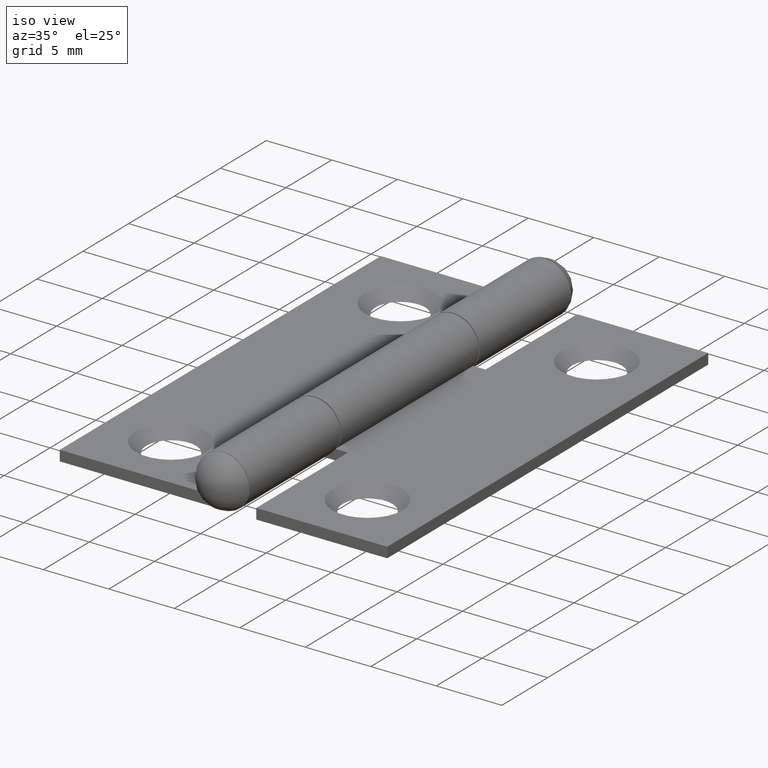
[diagram: clean part render]
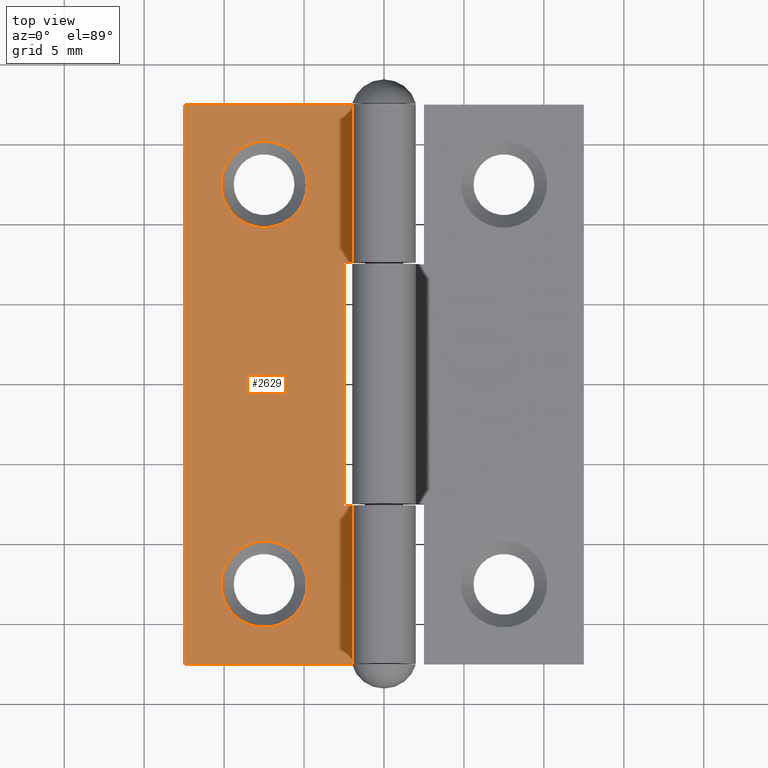
[diagram: tour spotlight — one face highlighted and labeled with its STEP entity id]
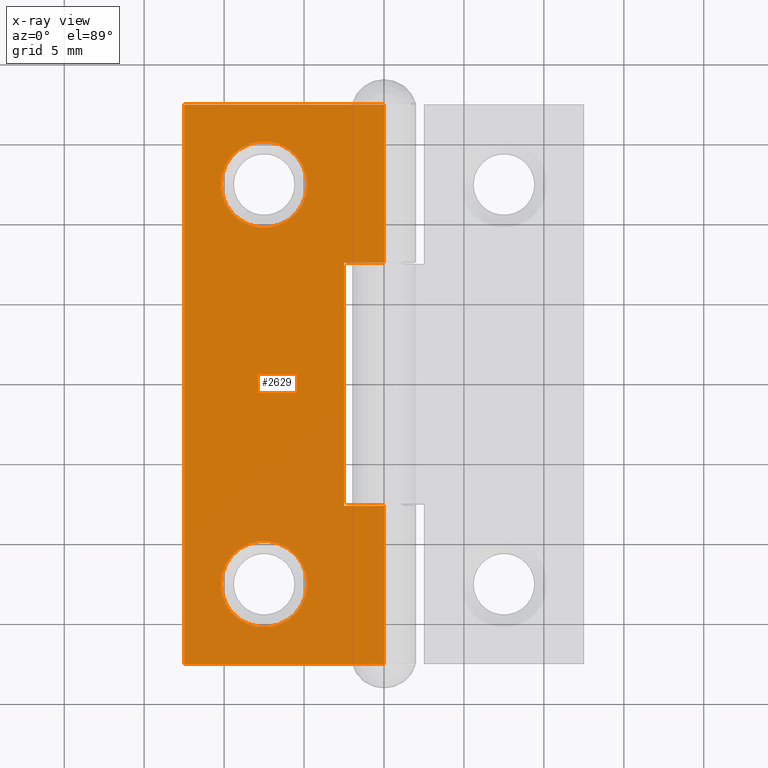
[diagram: x-ray of the same camera — body ghosted, this tour face saturated]
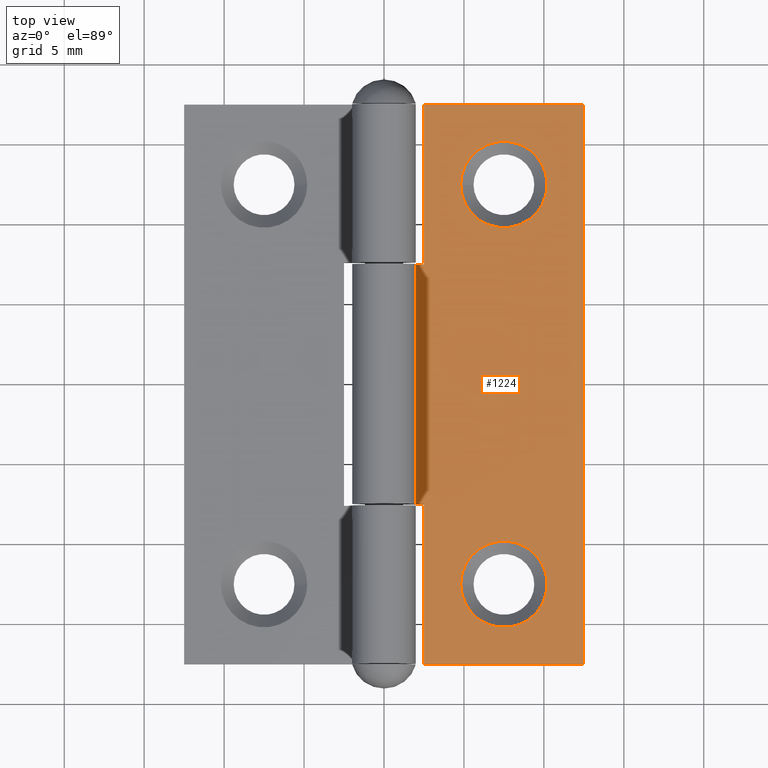
[diagram: tour spotlight — one face highlighted and labeled with its STEP entity id]
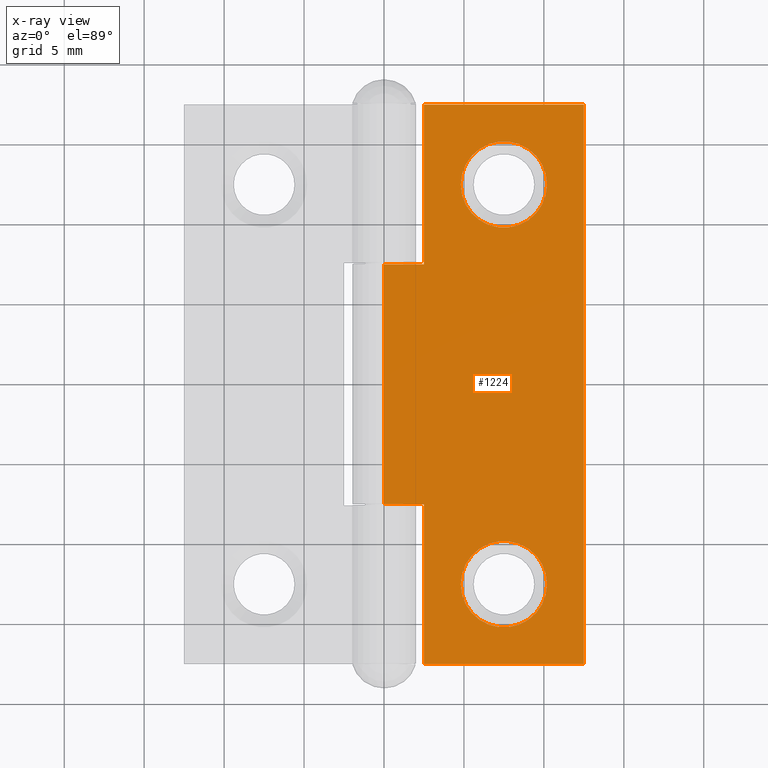
[diagram: x-ray of the same camera — body ghosted, this tour face saturated]
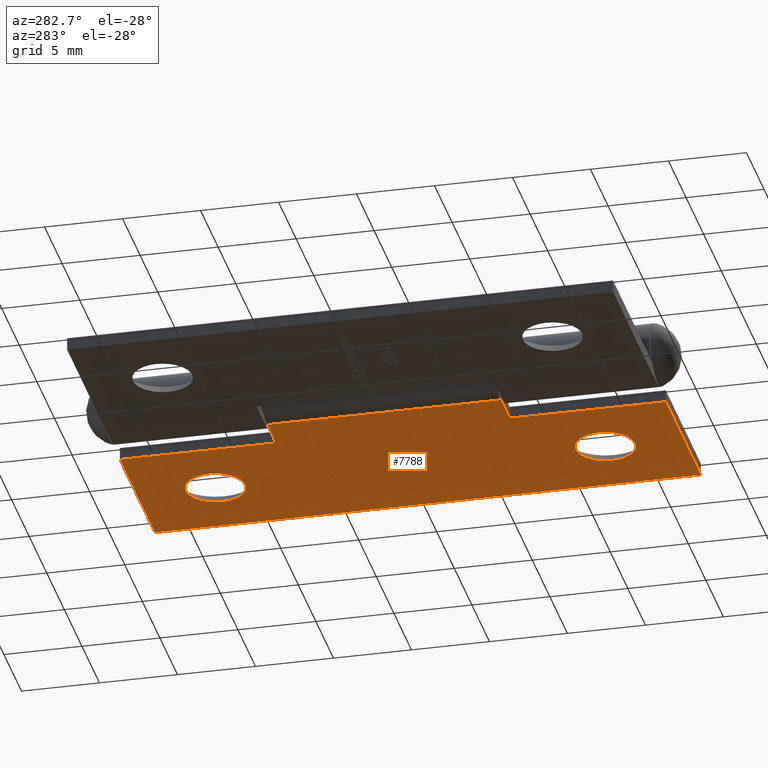
[diagram: tour spotlight — one face highlighted and labeled with its STEP entity id]
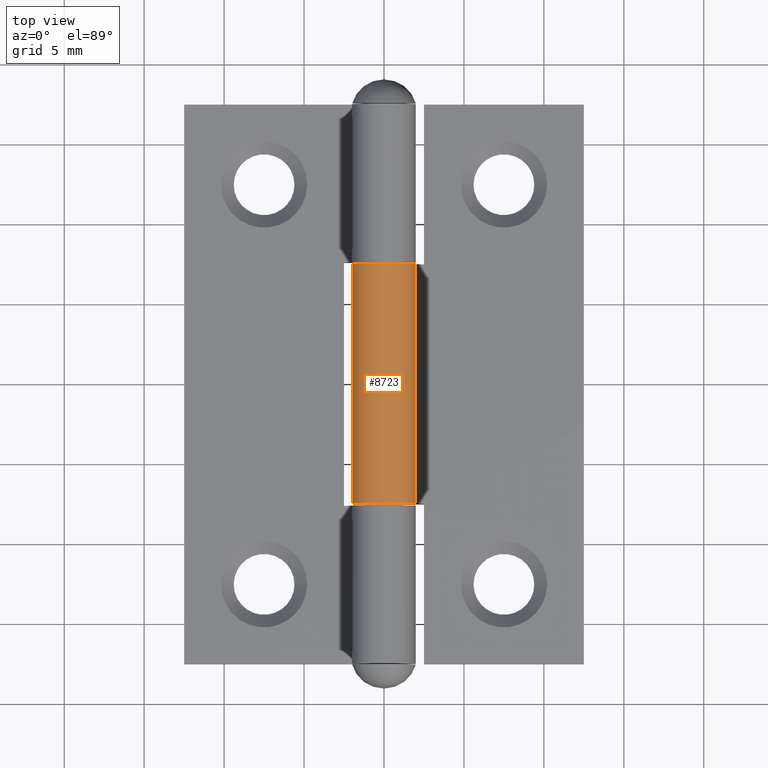
[diagram: tour spotlight — one face highlighted and labeled with its STEP entity id]
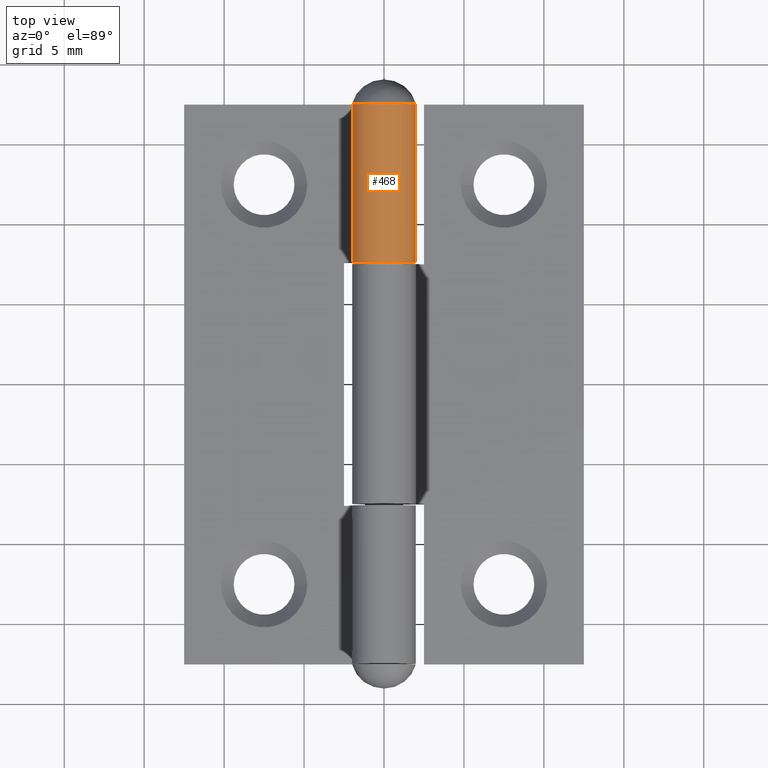
[diagram: tour spotlight — one face highlighted and labeled with its STEP entity id]
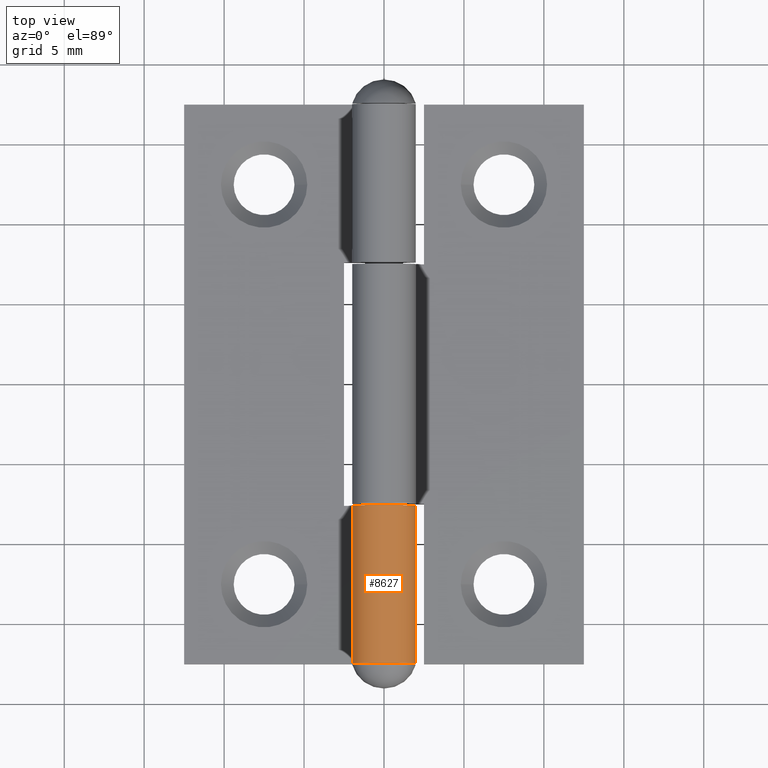
[diagram: tour spotlight — one face highlighted and labeled with its STEP entity id]
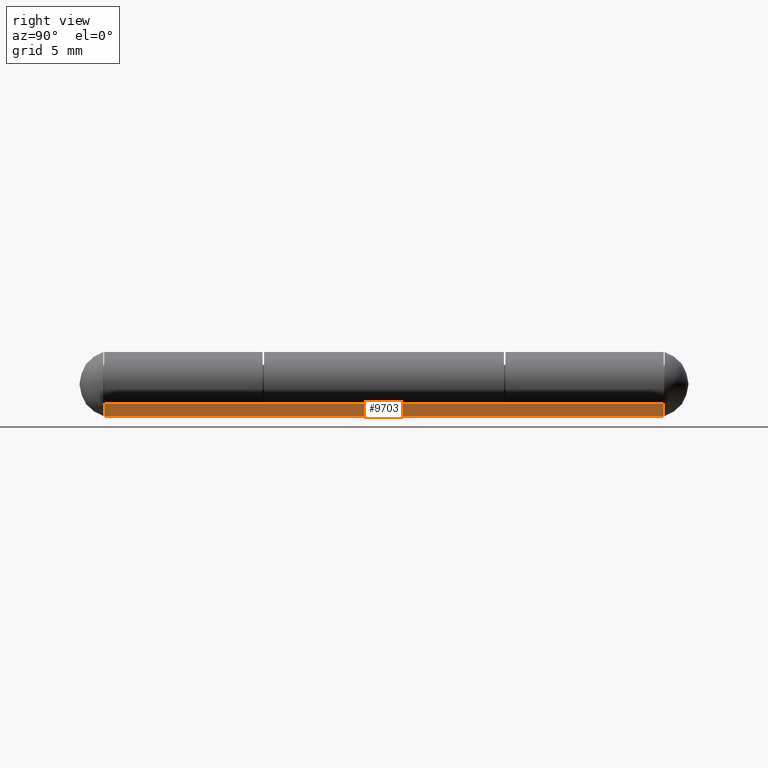
[diagram: tour spotlight — one face highlighted and labeled with its STEP entity id]
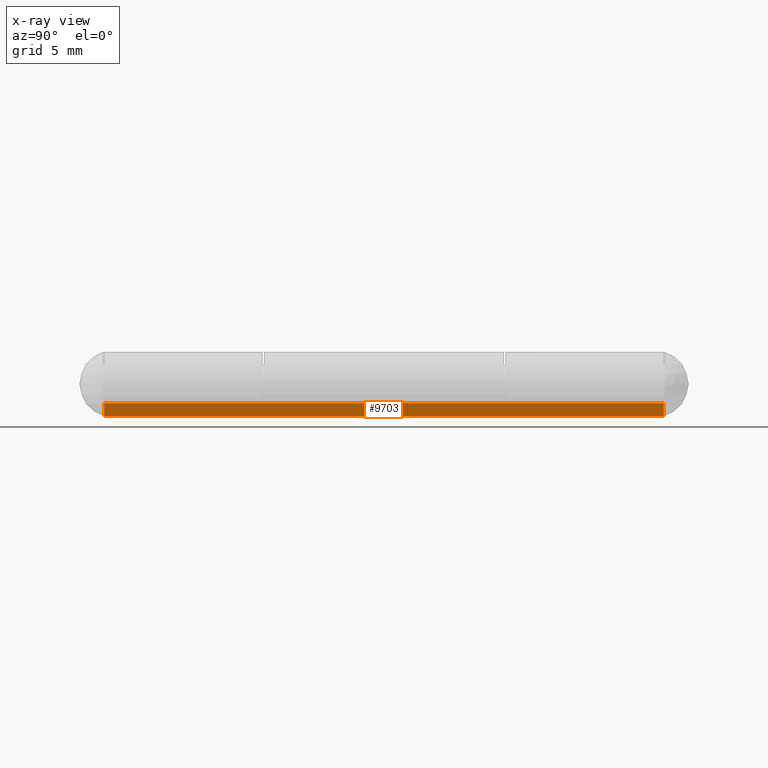
[diagram: x-ray of the same camera — body ghosted, this tour face saturated]
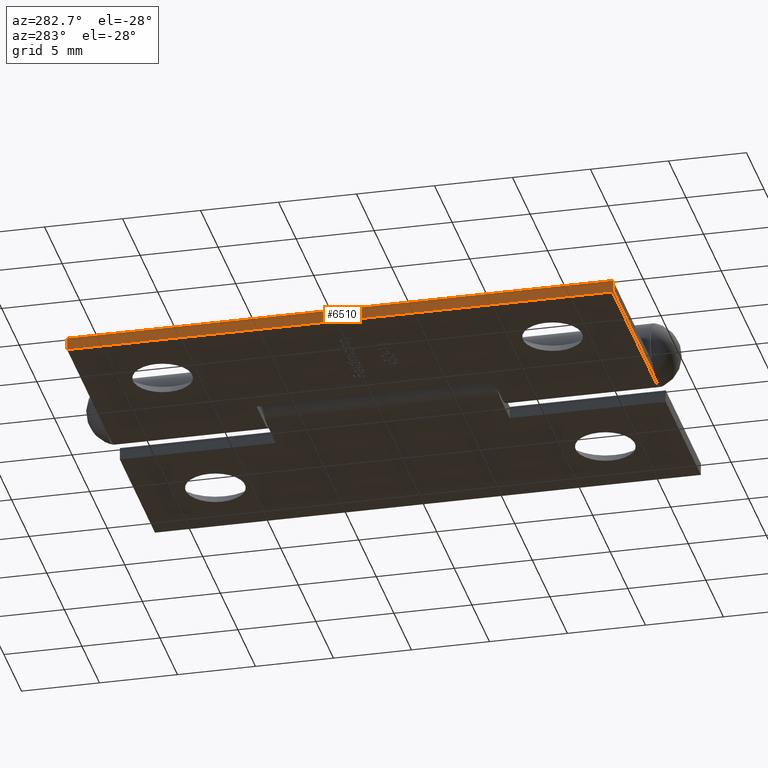
[diagram: tour spotlight — one face highlighted and labeled with its STEP entity id]
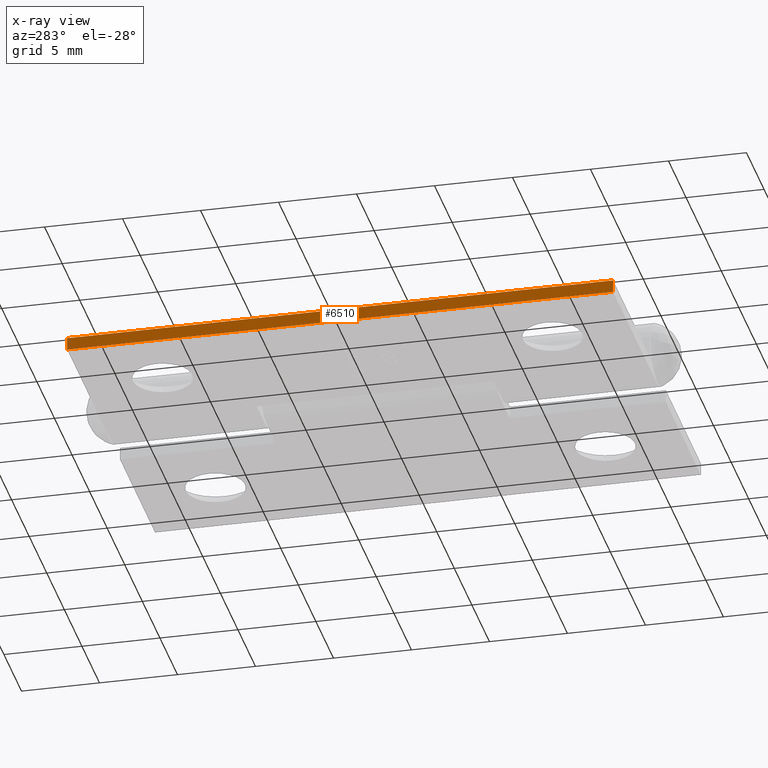
[diagram: x-ray of the same camera — body ghosted, this tour face saturated]
A machine part: a face-by-face anatomy tour. The part has 208 B-rep faces; the first image is the clean iso view, then the 8 largest visible faces are spotlighted one at a time (largest first), each with its STEP entity span.

Face 1 — top view, entity #2629. An x-ray twin of the same camera follows (body ghosted, this face saturated) — the face is partly hidden behind the body. In plain terms, the highlighted planar face has unit normal (-0, 0, -1).
Definition (entity closure, byte-faithful):
#178 = VERTEX_POINT ( 'NONE', #3424 ) ;
#339 = VECTOR ( 'NONE', #2017, 1000.000000000000000 ) ;
#443 = DIRECTION ( 'NONE',  ( -0.000000000000000000, -1.000000000000000000, -0.000000000000000000 ) ) ;
#486 = EDGE_CURVE ( 'NONE', #3921, #9926, #9848, .T. ) ;
#531 = CARTESIAN_POINT ( 'NONE',  ( -2.000000000000000000, -17.50000000000000000, 0.8000000000000001554 ) ) ;
#811 = ORIENTED_EDGE ( 'NONE', *, *, #1791, .T. ) ;
#819 = VECTOR ( 'NONE', #7658, 1000.000000000000000 ) ;
#914 = LINE ( 'NONE', #3261, #7197 ) ;
#1100 = EDGE_CURVE ( 'NONE', #5547, #9301, #914, .T. ) ;
#1205 = DIRECTION ( 'NONE',  ( -1.127570259384924611E-16, 0.000000000000000000, -1.000000000000000000 ) ) ;
#1235 = CARTESIAN_POINT ( 'NONE',  ( -9.500000000000005329, 12.49999999999999822, 0.8000000000000010436 ) ) ;
#1431 = LINE ( 'NONE', #9215, #819 ) ;
#1433 = PLANE ( 'NONE',  #9718 ) ;
#1488 = VECTOR ( 'NONE', #3952, 1000.000000000000000 ) ;
#1584 = CARTESIAN_POINT ( 'NONE',  ( -4.500000000000000000, -7.599999999999999645, 0.8000000000000003775 ) ) ;
#1663 = ORIENTED_EDGE ( 'NONE', *, *, #486, .T. ) ;
#1666 = ORIENTED_EDGE ( 'NONE', *, *, #7957, .T. ) ;
#1791 = EDGE_CURVE ( 'NONE', #4259, #9150, #3826, .T. ) ;
#1914 = ORIENTED_EDGE ( 'NONE', *, *, #3632, .T. ) ;
#1934 = VECTOR ( 'NONE', #443, 1000.000000000000000 ) ;
#2004 = CIRCLE ( 'NONE', #7117, 2.700000000000021938 ) ;
#2017 = DIRECTION ( 'NONE',  ( 0.000000000000000000, 1.000000000000000000, 0.000000000000000000 ) ) ;
#2247 = EDGE_LOOP ( 'NONE', ( #4095, #7237, #1914, #1663, #6989, #2524, #8153, #811 ) ) ;
#2248 = DIRECTION ( 'NONE',  ( 1.000000000000000000, -0.000000000000000000, -1.127570259384924611E-16 ) ) ;
#2259 = DIRECTION ( 'NONE',  ( -1.127570259384924611E-16, 0.000000000000000000, -1.000000000000000000 ) ) ;
#2524 = ORIENTED_EDGE ( 'NONE', *, *, #3361, .F. ) ;
#2629 = ADVANCED_FACE ( 'NONE', ( #9433, #5242, #3190 ), #1433, .F. ) ;
#2764 = DIRECTION ( 'NONE',  ( 1.000000000000000000, -0.000000000000000000, -1.127570259384924611E-16 ) ) ;
#2805 = CARTESIAN_POINT ( 'NONE',  ( -2.000000000000000000, 7.599999999999998757, 0.8000000000000001554 ) ) ;
#2947 = CARTESIAN_POINT ( 'NONE',  ( -12.20000000000002416, -12.50000000000000178, 0.8000000000000013767 ) ) ;
#3036 = AXIS2_PLACEMENT_3D ( 'NONE', #3411, #4300, #4985 ) ;
#3190 = FACE_OUTER_BOUND ( 'NONE', #2247, .T. ) ;
#3226 = DIRECTION ( 'NONE',  ( -1.000000000000000000, 0.000000000000000000, 1.127570259384924611E-16 ) ) ;
#3261 = CARTESIAN_POINT ( 'NONE',  ( -2.000000000000000000, -7.599999999999998757, 0.8000000000000001554 ) ) ;
#3361 = EDGE_CURVE ( 'NONE', #9867, #178, #3387, .T. ) ;
#3387 = LINE ( 'NONE', #7003, #5744 ) ;
#3411 = CARTESIAN_POINT ( 'NONE',  ( -9.500000000000001776, -12.50000000000000178, 0.8000000000000010436 ) ) ;
#3424 = CARTESIAN_POINT ( 'NONE',  ( -2.000000000000000000, 17.50000000000000000, 0.8000000000000001554 ) ) ;
#3580 = CIRCLE ( 'NONE', #3036, 2.700000000000021938 ) ;
#3586 = EDGE_CURVE ( 'NONE', #5547, #9150, #10066, .T. ) ;
#3632 = EDGE_CURVE ( 'NONE', #9301, #3921, #4993, .T. ) ;
#3764 = EDGE_CURVE ( 'NONE', #178, #9926, #1431, .T. ) ;
#3826 = LINE ( 'NONE', #8691, #1488 ) ;
#3921 = VERTEX_POINT ( 'NONE', #7297 ) ;
#3934 = VECTOR ( 'NONE', #8388, 1000.000000000000000 ) ;
#3952 = DIRECTION ( 'NONE',  ( 1.000000000000000000, -0.000000000000000000, -1.127570259384924611E-16 ) ) ;
#4095 = ORIENTED_EDGE ( 'NONE', *, *, #3586, .F. ) ;
#4259 = VERTEX_POINT ( 'NONE', #7398 ) ;
#4300 = DIRECTION ( 'NONE',  ( -1.127570259384924611E-16, 0.000000000000000000, -1.000000000000000000 ) ) ;
#4306 = CARTESIAN_POINT ( 'NONE',  ( -14.50000000000000000, 17.50000000000000000, 0.8000000000000015987 ) ) ;
#4427 = LINE ( 'NONE', #4306, #3934 ) ;
#4985 = DIRECTION ( 'NONE',  ( -1.000000000000000000, 0.000000000000000000, 1.204669080539439483E-16 ) ) ;
#4993 = LINE ( 'NONE', #8289, #339 ) ;
#5054 = CARTESIAN_POINT ( 'NONE',  ( -14.50000000000000000, 17.50000000000000000, 0.8000000000000015987 ) ) ;
#5242 = FACE_BOUND ( 'NONE', #8300, .T. ) ;
#5423 = CARTESIAN_POINT ( 'NONE',  ( -2.000000000000000000, 17.50000000000000000, 0.8000000000000001554 ) ) ;
#5547 = VERTEX_POINT ( 'NONE', #8218 ) ;
#5744 = VECTOR ( 'NONE', #2248, 1000.000000000000000 ) ;
#5948 = CARTESIAN_POINT ( 'NONE',  ( -2.000000000000000000, 7.599999999999998757, 0.8000000000000001554 ) ) ;
#5959 = CARTESIAN_POINT ( 'NONE',  ( -2.000000000000000000, 17.50000000000000000, 0.8000000000000001554 ) ) ;
#6920 = CARTESIAN_POINT ( 'NONE',  ( -12.20000000000002593, 12.49999999999999822, 0.8000000000000013767 ) ) ;
#6989 = ORIENTED_EDGE ( 'NONE', *, *, #3764, .F. ) ;
#7003 = CARTESIAN_POINT ( 'NONE',  ( -2.000000000000000000, 17.50000000000000000, 0.8000000000000001554 ) ) ;
#7117 = AXIS2_PLACEMENT_3D ( 'NONE', #1235, #1205, #9743 ) ;
#7197 = VECTOR ( 'NONE', #3226, 1000.000000000000000 ) ;
#7237 = ORIENTED_EDGE ( 'NONE', *, *, #1100, .T. ) ;
#7297 = CARTESIAN_POINT ( 'NONE',  ( -4.500000000000000000, 7.599999999999999645, 0.8000000000000003775 ) ) ;
#7398 = CARTESIAN_POINT ( 'NONE',  ( -14.50000000000000000, -17.50000000000000000, 0.8000000000000015987 ) ) ;
#7658 = DIRECTION ( 'NONE',  ( -0.000000000000000000, -1.000000000000000000, -0.000000000000000000 ) ) ;
#7957 = EDGE_CURVE ( 'NONE', #9865, #9865, #2004, .T. ) ;
#8153 = ORIENTED_EDGE ( 'NONE', *, *, #8822, .T. ) ;
#8218 = CARTESIAN_POINT ( 'NONE',  ( -2.000000000000000000, -7.599999999999998757, 0.8000000000000001554 ) ) ;
#8266 = VERTEX_POINT ( 'NONE', #2947 ) ;
#8289 = CARTESIAN_POINT ( 'NONE',  ( -4.500000000000000888, 17.50000000000000000, 0.8000000000000004885 ) ) ;
#8300 = EDGE_LOOP ( 'NONE', ( #1666 ) ) ;
#8388 = DIRECTION ( 'NONE',  ( -0.000000000000000000, -1.000000000000000000, -0.000000000000000000 ) ) ;
#8691 = CARTESIAN_POINT ( 'NONE',  ( -2.000000000000000000, -17.50000000000000000, 0.8000000000000001554 ) ) ;
#8822 = EDGE_CURVE ( 'NONE', #9867, #4259, #4427, .T. ) ;
#8825 = EDGE_LOOP ( 'NONE', ( #8960 ) ) ;
#8960 = ORIENTED_EDGE ( 'NONE', *, *, #9811, .T. ) ;
#9150 = VERTEX_POINT ( 'NONE', #531 ) ;
#9215 = CARTESIAN_POINT ( 'NONE',  ( -2.000000000000000000, 17.50000000000000000, 0.8000000000000001554 ) ) ;
#9301 = VERTEX_POINT ( 'NONE', #1584 ) ;
#9433 = FACE_BOUND ( 'NONE', #8825, .T. ) ;
#9718 = AXIS2_PLACEMENT_3D ( 'NONE', #5423, #2259, #10111 ) ;
#9743 = DIRECTION ( 'NONE',  ( -1.000000000000000000, 0.000000000000000000, 1.204669080539439483E-16 ) ) ;
#9811 = EDGE_CURVE ( 'NONE', #8266, #8266, #3580, .T. ) ;
#9848 = LINE ( 'NONE', #2805, #10205 ) ;
#9865 = VERTEX_POINT ( 'NONE', #6920 ) ;
#9867 = VERTEX_POINT ( 'NONE', #5054 ) ;
#9926 = VERTEX_POINT ( 'NONE', #5948 ) ;
#10066 = LINE ( 'NONE', #5959, #1934 ) ;
#10111 = DIRECTION ( 'NONE',  ( -1.000000000000000000, 0.000000000000000000, 1.127570259384924611E-16 ) ) ;
#10205 = VECTOR ( 'NONE', #2764, 1000.000000000000000 ) ;

Face 2 — top view, entity #1224. An x-ray twin of the same camera follows (body ghosted, this face saturated) — the face is partly hidden behind the body. In plain terms, the highlighted planar face has unit normal (0, -0, -1).
Definition (entity closure, byte-faithful):
#119 = VERTEX_POINT ( 'NONE', #9287 ) ;
#354 = CARTESIAN_POINT ( 'NONE',  ( -2.000000000000000000, 17.50000000000000000, 0.8000000000000001554 ) ) ;
#587 = CARTESIAN_POINT ( 'NONE',  ( -2.000000000000000000, -17.50000000000000000, 0.8000000000000001554 ) ) ;
#1083 = ORIENTED_EDGE ( 'NONE', *, *, #5828, .T. ) ;
#1192 = LINE ( 'NONE', #1929, #2545 ) ;
#1224 = ADVANCED_FACE ( 'NONE', ( #8324, #7937, #7580 ), #9923, .F. ) ;
#1536 = DIRECTION ( 'NONE',  ( -1.000000000000000000, 0.000000000000000000, 1.204669080539452055E-16 ) ) ;
#1617 = AXIS2_PLACEMENT_3D ( 'NONE', #10051, #7012, #2194 ) ;
#1751 = DIRECTION ( 'NONE',  ( -0.000000000000000000, -1.000000000000000000, -0.000000000000000000 ) ) ;
#1786 = CARTESIAN_POINT ( 'NONE',  ( -2.000000000000000000, 17.50000000000000000, 0.8000000000000001554 ) ) ;
#1792 = ORIENTED_EDGE ( 'NONE', *, *, #4288, .F. ) ;
#1929 = CARTESIAN_POINT ( 'NONE',  ( -2.000000000000000000, -7.500000000000000000, 0.8000000000000001554 ) ) ;
#2093 = DIRECTION ( 'NONE',  ( 1.000000000000000000, -0.000000000000000000, -1.127570259384924611E-16 ) ) ;
#2116 = EDGE_LOOP ( 'NONE', ( #8781 ) ) ;
#2117 = CARTESIAN_POINT ( 'NONE',  ( -2.000000000000000000, 7.500000000000000000, 0.8000000000000001554 ) ) ;
#2130 = AXIS2_PLACEMENT_3D ( 'NONE', #6077, #8606, #1536 ) ;
#2179 = CARTESIAN_POINT ( 'NONE',  ( -12.19999999999999929, 12.49999999999999822, 0.8000000000000013767 ) ) ;
#2194 = DIRECTION ( 'NONE',  ( -1.000000000000000000, 0.000000000000000000, 1.204669080539452055E-16 ) ) ;
#2213 = VERTEX_POINT ( 'NONE', #2179 ) ;
#2402 = ORIENTED_EDGE ( 'NONE', *, *, #7692, .T. ) ;
#2515 = EDGE_CURVE ( 'NONE', #9634, #4622, #1192, .T. ) ;
#2545 = VECTOR ( 'NONE', #3503, 1000.000000000000000 ) ;
#2690 = DIRECTION ( 'NONE',  ( 0.000000000000000000, 1.000000000000000000, 0.000000000000000000 ) ) ;
#2938 = CARTESIAN_POINT ( 'NONE',  ( -14.50000000000000000, 17.50000000000000000, 0.8000000000000015987 ) ) ;
#3065 = CARTESIAN_POINT ( 'NONE',  ( -4.499999999999995559, 17.50000000000000000, 0.8000000000000004885 ) ) ;
#3200 = EDGE_CURVE ( 'NONE', #9182, #119, #6021, .T. ) ;
#3503 = DIRECTION ( 'NONE',  ( 1.000000000000000000, -0.000000000000000000, -1.127570259384924611E-16 ) ) ;
#3542 = CARTESIAN_POINT ( 'NONE',  ( -4.500000000000002665, -17.50000000000000000, 0.8000000000000004885 ) ) ;
#4061 = CARTESIAN_POINT ( 'NONE',  ( -2.000000000000000000, 17.50000000000000000, 0.8000000000000001554 ) ) ;
#4288 = EDGE_CURVE ( 'NONE', #7782, #4622, #4983, .T. ) ;
#4354 = LINE ( 'NONE', #5185, #4469 ) ;
#4469 = VECTOR ( 'NONE', #2690, 1000.000000000000000 ) ;
#4488 = ORIENTED_EDGE ( 'NONE', *, *, #5199, .T. ) ;
#4530 = EDGE_CURVE ( 'NONE', #119, #7979, #7346, .T. ) ;
#4622 = VERTEX_POINT ( 'NONE', #8894 ) ;
#4983 = LINE ( 'NONE', #1786, #9938 ) ;
#4999 = EDGE_CURVE ( 'NONE', #5163, #5163, #7330, .T. ) ;
#5102 = DIRECTION ( 'NONE',  ( -0.000000000000000000, -1.000000000000000000, -0.000000000000000000 ) ) ;
#5163 = VERTEX_POINT ( 'NONE', #6891 ) ;
#5185 = CARTESIAN_POINT ( 'NONE',  ( -4.500000000000000888, 17.50000000000000000, 0.8000000000000004885 ) ) ;
#5199 = EDGE_CURVE ( 'NONE', #7888, #6572, #4354, .T. ) ;
#5586 = CIRCLE ( 'NONE', #1617, 2.699999999999993960 ) ;
#5666 = DIRECTION ( 'NONE',  ( 1.000000000000000000, -0.000000000000000000, -1.127570259384924611E-16 ) ) ;
#5767 = ORIENTED_EDGE ( 'NONE', *, *, #4530, .T. ) ;
#5828 = EDGE_CURVE ( 'NONE', #2213, #2213, #5586, .T. ) ;
#5997 = ORIENTED_EDGE ( 'NONE', *, *, #6065, .F. ) ;
#6021 = LINE ( 'NONE', #7599, #6255 ) ;
#6065 = EDGE_CURVE ( 'NONE', #9182, #6572, #6104, .T. ) ;
#6077 = CARTESIAN_POINT ( 'NONE',  ( -9.500000000000001776, -12.50000000000000178, 0.8000000000000010436 ) ) ;
#6080 = EDGE_LOOP ( 'NONE', ( #2402, #4488, #5997, #10148, #5767, #6310, #9299, #1792 ) ) ;
#6104 = LINE ( 'NONE', #4061, #7185 ) ;
#6202 = LINE ( 'NONE', #2117, #8770 ) ;
#6255 = VECTOR ( 'NONE', #5102, 1000.000000000000000 ) ;
#6310 = ORIENTED_EDGE ( 'NONE', *, *, #6559, .T. ) ;
#6559 = EDGE_CURVE ( 'NONE', #7979, #9634, #9638, .T. ) ;
#6572 = VERTEX_POINT ( 'NONE', #9263 ) ;
#6662 = DIRECTION ( 'NONE',  ( -1.127570259384924611E-16, 0.000000000000000000, -1.000000000000000000 ) ) ;
#6837 = VECTOR ( 'NONE', #10092, 1000.000000000000000 ) ;
#6891 = CARTESIAN_POINT ( 'NONE',  ( -12.19999999999999574, -12.50000000000000178, 0.8000000000000013767 ) ) ;
#7004 = CARTESIAN_POINT ( 'NONE',  ( -4.500000000000000000, -7.500000000000000000, 0.8000000000000003775 ) ) ;
#7012 = DIRECTION ( 'NONE',  ( -1.127570259384924611E-16, 0.000000000000000000, -1.000000000000000000 ) ) ;
#7185 = VECTOR ( 'NONE', #5666, 1000.000000000000000 ) ;
#7330 = CIRCLE ( 'NONE', #2130, 2.699999999999993960 ) ;
#7346 = LINE ( 'NONE', #587, #8209 ) ;
#7544 = AXIS2_PLACEMENT_3D ( 'NONE', #354, #6662, #9102 ) ;
#7580 = FACE_OUTER_BOUND ( 'NONE', #6080, .T. ) ;
#7599 = CARTESIAN_POINT ( 'NONE',  ( -14.50000000000000000, 17.50000000000000000, 0.8000000000000015987 ) ) ;
#7636 = DIRECTION ( 'NONE',  ( -1.000000000000000000, 0.000000000000000000, 1.127570259384924611E-16 ) ) ;
#7687 = CARTESIAN_POINT ( 'NONE',  ( -4.500000000000000000, 7.500000000000000000, 0.8000000000000003775 ) ) ;
#7692 = EDGE_CURVE ( 'NONE', #7782, #7888, #6202, .T. ) ;
#7782 = VERTEX_POINT ( 'NONE', #9241 ) ;
#7888 = VERTEX_POINT ( 'NONE', #7687 ) ;
#7937 = FACE_BOUND ( 'NONE', #9622, .T. ) ;
#7979 = VERTEX_POINT ( 'NONE', #3542 ) ;
#8209 = VECTOR ( 'NONE', #2093, 1000.000000000000000 ) ;
#8324 = FACE_BOUND ( 'NONE', #2116, .T. ) ;
#8606 = DIRECTION ( 'NONE',  ( -1.127570259384924611E-16, 0.000000000000000000, -1.000000000000000000 ) ) ;
#8770 = VECTOR ( 'NONE', #7636, 1000.000000000000000 ) ;
#8781 = ORIENTED_EDGE ( 'NONE', *, *, #4999, .T. ) ;
#8894 = CARTESIAN_POINT ( 'NONE',  ( -2.000000000000000000, -7.500000000000000000, 0.8000000000000001554 ) ) ;
#9102 = DIRECTION ( 'NONE',  ( -1.000000000000000000, 0.000000000000000000, 1.127570259384924611E-16 ) ) ;
#9182 = VERTEX_POINT ( 'NONE', #2938 ) ;
#9241 = CARTESIAN_POINT ( 'NONE',  ( -2.000000000000000000, 7.500000000000000000, 0.8000000000000001554 ) ) ;
#9263 = CARTESIAN_POINT ( 'NONE',  ( -4.500000000000000000, 17.50000000000000000, 0.8000000000000008216 ) ) ;
#9287 = CARTESIAN_POINT ( 'NONE',  ( -14.50000000000000000, -17.50000000000000000, 0.8000000000000015987 ) ) ;
#9299 = ORIENTED_EDGE ( 'NONE', *, *, #2515, .T. ) ;
#9622 = EDGE_LOOP ( 'NONE', ( #1083 ) ) ;
#9634 = VERTEX_POINT ( 'NONE', #7004 ) ;
#9638 = LINE ( 'NONE', #3065, #6837 ) ;
#9923 = PLANE ( 'NONE',  #7544 ) ;
#9938 = VECTOR ( 'NONE', #1751, 1000.000000000000000 ) ;
#10051 = CARTESIAN_POINT ( 'NONE',  ( -9.500000000000005329, 12.49999999999999822, 0.8000000000000010436 ) ) ;
#10092 = DIRECTION ( 'NONE',  ( 1.734723475976806848E-16, 1.000000000000000000, -1.956022599768286140E-32 ) ) ;
#10148 = ORIENTED_EDGE ( 'NONE', *, *, #3200, .T. ) ;

Face 3 — auxiliary view, entity #7788. In plain terms, the highlighted planar face has unit normal (-0, 0, 1).
Definition (entity closure, byte-faithful):
#53 = ORIENTED_EDGE ( 'NONE', *, *, #8774, .F. ) ;
#408 = FACE_BOUND ( 'NONE', #4222, .T. ) ;
#1058 = LINE ( 'NONE', #2635, #10185 ) ;
#1129 = VECTOR ( 'NONE', #9473, 1000.000000000000000 ) ;
#1134 = CARTESIAN_POINT ( 'NONE',  ( -14.50000000000000000, -17.50000000000000000, 1.517883041479706208E-15 ) ) ;
#1200 = VERTEX_POINT ( 'NONE', #4395 ) ;
#1283 = CARTESIAN_POINT ( 'NONE',  ( -9.500000000000001776, -12.50000000000000178, 2.168404344971008868E-16 ) ) ;
#1860 = CARTESIAN_POINT ( 'NONE',  ( -2.000000000000000000, -17.50000000000000000, 0.000000000000000000 ) ) ;
#1876 = FACE_OUTER_BOUND ( 'NONE', #10037, .T. ) ;
#2104 = LINE ( 'NONE', #8616, #3448 ) ;
#2189 = AXIS2_PLACEMENT_3D ( 'NONE', #7026, #3841, #3038 ) ;
#2210 = DIRECTION ( 'NONE',  ( 1.214306433183764966E-16, -0.000000000000000000, 1.000000000000000000 ) ) ;
#2231 = LINE ( 'NONE', #8700, #1129 ) ;
#2246 = EDGE_CURVE ( 'NONE', #9470, #9470, #8902, .T. ) ;
#2285 = LINE ( 'NONE', #1860, #7811 ) ;
#2635 = CARTESIAN_POINT ( 'NONE',  ( -14.50000000000000000, 17.50000000000000000, 1.517883041479706208E-15 ) ) ;
#2676 = CIRCLE ( 'NONE', #6128, 1.900000000000000577 ) ;
#2768 = VERTEX_POINT ( 'NONE', #3055 ) ;
#3038 = DIRECTION ( 'NONE',  ( 1.000000000000000000, 0.000000000000000000, 0.000000000000000000 ) ) ;
#3055 = CARTESIAN_POINT ( 'NONE',  ( -2.000000000000000000, -7.500000000000000000, 2.602085213965210149E-16 ) ) ;
#3126 = EDGE_CURVE ( 'NONE', #4062, #4361, #1058, .T. ) ;
#3129 = ORIENTED_EDGE ( 'NONE', *, *, #6879, .F. ) ;
#3352 = ORIENTED_EDGE ( 'NONE', *, *, #4081, .T. ) ;
#3448 = VECTOR ( 'NONE', #5405, 1000.000000000000000 ) ;
#3538 = EDGE_CURVE ( 'NONE', #1200, #4062, #4261, .T. ) ;
#3660 = DIRECTION ( 'NONE',  ( 1.000000000000000000, 0.000000000000000000, 0.000000000000000000 ) ) ;
#3681 = EDGE_CURVE ( 'NONE', #5932, #5932, #2676, .T. ) ;
#3841 = DIRECTION ( 'NONE',  ( 0.000000000000000000, 0.000000000000000000, 1.000000000000000000 ) ) ;
#4057 = VECTOR ( 'NONE', #5511, 1000.000000000000000 ) ;
#4062 = VERTEX_POINT ( 'NONE', #8208 ) ;
#4081 = EDGE_CURVE ( 'NONE', #9902, #2768, #8696, .T. ) ;
#4102 = DIRECTION ( 'NONE',  ( 1.734723475976806848E-16, 1.000000000000000000, -2.888894916580853232E-32 ) ) ;
#4222 = EDGE_LOOP ( 'NONE', ( #7298 ) ) ;
#4261 = LINE ( 'NONE', #8220, #7476 ) ;
#4361 = VERTEX_POINT ( 'NONE', #1134 ) ;
#4395 = CARTESIAN_POINT ( 'NONE',  ( -4.500000000000000888, 17.50000000000000000, 3.035766082959413401E-16 ) ) ;
#4402 = VERTEX_POINT ( 'NONE', #9159 ) ;
#4419 = CARTESIAN_POINT ( 'NONE',  ( -4.500000000000002665, -17.50000000000000000, 5.854691731421726902E-16 ) ) ;
#4583 = PLANE ( 'NONE',  #6603 ) ;
#4593 = ORIENTED_EDGE ( 'NONE', *, *, #4848, .T. ) ;
#4810 = CARTESIAN_POINT ( 'NONE',  ( 4.500000000000002665, -7.500000000000000000, -5.854691731421726902E-16 ) ) ;
#4848 = EDGE_CURVE ( 'NONE', #5344, #4361, #2285, .T. ) ;
#4995 = DIRECTION ( 'NONE',  ( -0.000000000000000000, -1.000000000000000000, -0.000000000000000000 ) ) ;
#5232 = ORIENTED_EDGE ( 'NONE', *, *, #2246, .T. ) ;
#5344 = VERTEX_POINT ( 'NONE', #4419 ) ;
#5405 = DIRECTION ( 'NONE',  ( -1.000000000000000000, 0.000000000000000000, 1.301042606982605321E-16 ) ) ;
#5442 = CARTESIAN_POINT ( 'NONE',  ( -2.000000000000000000, 17.50000000000000000, 0.000000000000000000 ) ) ;
#5511 = DIRECTION ( 'NONE',  ( 1.000000000000000000, -0.000000000000000000, -1.301042606982605321E-16 ) ) ;
#5694 = FACE_BOUND ( 'NONE', #5856, .T. ) ;
#5765 = CARTESIAN_POINT ( 'NONE',  ( -2.000000000000000000, 7.500000000000000000, 2.602085213965210149E-16 ) ) ;
#5824 = LINE ( 'NONE', #4810, #4057 ) ;
#5856 = EDGE_LOOP ( 'NONE', ( #5232 ) ) ;
#5879 = VECTOR ( 'NONE', #7444, 1000.000000000000000 ) ;
#5925 = DIRECTION ( 'NONE',  ( -1.000000000000000000, 0.000000000000000000, 1.214306433183764966E-16 ) ) ;
#5932 = VERTEX_POINT ( 'NONE', #8492 ) ;
#6099 = VECTOR ( 'NONE', #4102, 1000.000000000000000 ) ;
#6123 = CARTESIAN_POINT ( 'NONE',  ( -2.000000000000000000, 17.50000000000000000, 0.000000000000000000 ) ) ;
#6128 = AXIS2_PLACEMENT_3D ( 'NONE', #1283, #9908, #3660 ) ;
#6603 = AXIS2_PLACEMENT_3D ( 'NONE', #5442, #2210, #6943 ) ;
#6741 = DIRECTION ( 'NONE',  ( -1.000000000000000000, 0.000000000000000000, 1.214306433183764966E-16 ) ) ;
#6801 = ORIENTED_EDGE ( 'NONE', *, *, #3538, .F. ) ;
#6879 = EDGE_CURVE ( 'NONE', #5344, #4402, #9776, .T. ) ;
#6943 = DIRECTION ( 'NONE',  ( 1.000000000000000000, 0.000000000000000000, -1.214306433183764966E-16 ) ) ;
#7026 = CARTESIAN_POINT ( 'NONE',  ( -9.500000000000005329, 12.49999999999999822, 2.168404344971008868E-16 ) ) ;
#7136 = ORIENTED_EDGE ( 'NONE', *, *, #9270, .F. ) ;
#7216 = CARTESIAN_POINT ( 'NONE',  ( -4.500000000000000888, -7.500000000000000000, 5.854691731421723944E-16 ) ) ;
#7275 = ORIENTED_EDGE ( 'NONE', *, *, #8613, .F. ) ;
#7298 = ORIENTED_EDGE ( 'NONE', *, *, #3681, .T. ) ;
#7444 = DIRECTION ( 'NONE',  ( -0.000000000000000000, -1.000000000000000000, -0.000000000000000000 ) ) ;
#7476 = VECTOR ( 'NONE', #5925, 1000.000000000000000 ) ;
#7788 = ADVANCED_FACE ( 'NONE', ( #408, #5694, #1876 ), #4583, .F. ) ;
#7811 = VECTOR ( 'NONE', #6741, 1000.000000000000000 ) ;
#8125 = ORIENTED_EDGE ( 'NONE', *, *, #3126, .F. ) ;
#8208 = CARTESIAN_POINT ( 'NONE',  ( -14.50000000000000000, 17.50000000000000000, 1.517883041479706208E-15 ) ) ;
#8210 = CARTESIAN_POINT ( 'NONE',  ( -4.500000000000000888, 7.500000000000000000, 5.854691731421723944E-16 ) ) ;
#8220 = CARTESIAN_POINT ( 'NONE',  ( -2.000000000000000000, 17.50000000000000000, 0.000000000000000000 ) ) ;
#8492 = CARTESIAN_POINT ( 'NONE',  ( -7.600000000000000533, -12.50000000000000178, 2.168404344971008868E-16 ) ) ;
#8613 = EDGE_CURVE ( 'NONE', #4402, #2768, #5824, .T. ) ;
#8616 = CARTESIAN_POINT ( 'NONE',  ( 4.500000000000002665, 7.500000000000000000, -5.854691731421726902E-16 ) ) ;
#8696 = LINE ( 'NONE', #6123, #5879 ) ;
#8700 = CARTESIAN_POINT ( 'NONE',  ( -4.500000000000000888, 17.50000000000000000, 5.854691731421723944E-16 ) ) ;
#8774 = EDGE_CURVE ( 'NONE', #9883, #1200, #2231, .T. ) ;
#8902 = CIRCLE ( 'NONE', #2189, 1.900000000000000577 ) ;
#9159 = CARTESIAN_POINT ( 'NONE',  ( -4.500000000000000888, -7.500000000000000000, 5.854691731421723944E-16 ) ) ;
#9270 = EDGE_CURVE ( 'NONE', #9902, #9883, #2104, .T. ) ;
#9470 = VERTEX_POINT ( 'NONE', #9999 ) ;
#9473 = DIRECTION ( 'NONE',  ( -0.000000000000000000, 1.000000000000000000, -0.000000000000000000 ) ) ;
#9776 = LINE ( 'NONE', #7216, #6099 ) ;
#9883 = VERTEX_POINT ( 'NONE', #8210 ) ;
#9902 = VERTEX_POINT ( 'NONE', #5765 ) ;
#9908 = DIRECTION ( 'NONE',  ( 0.000000000000000000, 0.000000000000000000, 1.000000000000000000 ) ) ;
#9999 = CARTESIAN_POINT ( 'NONE',  ( -7.600000000000004086, 12.49999999999999822, 2.168404344971008868E-16 ) ) ;
#10037 = EDGE_LOOP ( 'NONE', ( #6801, #53, #7136, #3352, #7275, #3129, #4593, #8125 ) ) ;
#10185 = VECTOR ( 'NONE', #4995, 1000.000000000000000 ) ;

Face 4 — top view, entity #8723. In plain terms, the highlighted cylindrical surface (edge-blend (fillet) strip) has radius 2 mm, axis along (0, 1, -0).
Definition (entity closure, byte-faithful):
#173 = DIRECTION ( 'NONE',  ( 0.000000000000000000, -1.000000000000000000, 0.000000000000000000 ) ) ;
#708 = DIRECTION ( 'NONE',  ( 0.000000000000000000, 0.000000000000000000, 1.000000000000000000 ) ) ;
#985 = CARTESIAN_POINT ( 'NONE',  ( -2.000000000000000000, 17.50000000000000000, 2.000000000000000444 ) ) ;
#1196 = VERTEX_POINT ( 'NONE', #5011 ) ;
#1353 = DIRECTION ( 'NONE',  ( 0.000000000000000000, 1.000000000000000000, -0.000000000000000000 ) ) ;
#1492 = ORIENTED_EDGE ( 'NONE', *, *, #3329, .T. ) ;
#1827 = ORIENTED_EDGE ( 'NONE', *, *, #4081, .F. ) ;
#2394 = VERTEX_POINT ( 'NONE', #6421 ) ;
#2768 = VERTEX_POINT ( 'NONE', #3055 ) ;
#3055 = CARTESIAN_POINT ( 'NONE',  ( -2.000000000000000000, -7.500000000000000000, 2.602085213965210149E-16 ) ) ;
#3209 = DIRECTION ( 'NONE',  ( 0.000000000000000000, 0.000000000000000000, -1.000000000000000000 ) ) ;
#3218 = CIRCLE ( 'NONE', #4766, 2.000000000000000000 ) ;
#3329 = EDGE_CURVE ( 'NONE', #1196, #2768, #8356, .T. ) ;
#3606 = ORIENTED_EDGE ( 'NONE', *, *, #7901, .T. ) ;
#3720 = VECTOR ( 'NONE', #4532, 1000.000000000000000 ) ;
#3817 = CARTESIAN_POINT ( 'NONE',  ( -2.000000000000000000, -7.500000000000000000, 2.000000000000000444 ) ) ;
#4069 = LINE ( 'NONE', #5968, #3720 ) ;
#4081 = EDGE_CURVE ( 'NONE', #9902, #2768, #8696, .T. ) ;
#4532 = DIRECTION ( 'NONE',  ( -0.000000000000000000, -1.000000000000000000, -0.000000000000000000 ) ) ;
#4766 = AXIS2_PLACEMENT_3D ( 'NONE', #8122, #173, #5684 ) ;
#5011 = CARTESIAN_POINT ( 'NONE',  ( -3.670329308849006544, -7.500000000000000000, 0.9000000000000001332 ) ) ;
#5228 = EDGE_LOOP ( 'NONE', ( #1827, #3606, #7404, #1492 ) ) ;
#5390 = AXIS2_PLACEMENT_3D ( 'NONE', #985, #7926, #3209 ) ;
#5684 = DIRECTION ( 'NONE',  ( 0.000000000000000000, 0.000000000000000000, -1.000000000000000000 ) ) ;
#5765 = CARTESIAN_POINT ( 'NONE',  ( -2.000000000000000000, 7.500000000000000000, 2.602085213965210149E-16 ) ) ;
#5879 = VECTOR ( 'NONE', #7444, 1000.000000000000000 ) ;
#5968 = CARTESIAN_POINT ( 'NONE',  ( -3.670329308849006544, 17.50000000000000000, 0.9000000000000002442 ) ) ;
#6123 = CARTESIAN_POINT ( 'NONE',  ( -2.000000000000000000, 17.50000000000000000, 0.000000000000000000 ) ) ;
#6421 = CARTESIAN_POINT ( 'NONE',  ( -3.670329308849006544, 7.500000000000000000, 0.9000000000000001332 ) ) ;
#6567 = CYLINDRICAL_SURFACE ( 'NONE', #5390, 2.000000000000000000 ) ;
#7404 = ORIENTED_EDGE ( 'NONE', *, *, #7635, .T. ) ;
#7444 = DIRECTION ( 'NONE',  ( -0.000000000000000000, -1.000000000000000000, -0.000000000000000000 ) ) ;
#7635 = EDGE_CURVE ( 'NONE', #2394, #1196, #4069, .T. ) ;
#7901 = EDGE_CURVE ( 'NONE', #9902, #2394, #3218, .T. ) ;
#7926 = DIRECTION ( 'NONE',  ( -0.000000000000000000, -1.000000000000000000, -0.000000000000000000 ) ) ;
#8122 = CARTESIAN_POINT ( 'NONE',  ( -2.000000000000000000, 7.500000000000000000, 2.000000000000000444 ) ) ;
#8356 = CIRCLE ( 'NONE', #8413, 1.999999999999999556 ) ;
#8413 = AXIS2_PLACEMENT_3D ( 'NONE', #3817, #1353, #708 ) ;
#8696 = LINE ( 'NONE', #6123, #5879 ) ;
#8723 = ADVANCED_FACE ( 'NONE', ( #9755 ), #6567, .T. ) ;
#9755 = FACE_OUTER_BOUND ( 'NONE', #5228, .T. ) ;
#9902 = VERTEX_POINT ( 'NONE', #5765 ) ;

Face 5 — top view, entity #468. In plain terms, the highlighted cylindrical surface (edge-blend (fillet) strip) has radius 2 mm, axis along (-0, -1, -0).
Definition (entity closure, byte-faithful):
#458 = VERTEX_POINT ( 'NONE', #2838 ) ;
#468 = ADVANCED_FACE ( 'NONE', ( #9970 ), #1962, .T. ) ;
#702 = DIRECTION ( 'NONE',  ( -0.000000000000000000, -1.000000000000000000, -0.000000000000000000 ) ) ;
#764 = EDGE_CURVE ( 'NONE', #7608, #1430, #1572, .T. ) ;
#1163 = CARTESIAN_POINT ( 'NONE',  ( -3.670329308849006544, 17.50000000000000000, 0.9000000000000002442 ) ) ;
#1340 = DIRECTION ( 'NONE',  ( -0.000000000000000000, -1.000000000000000000, -0.000000000000000000 ) ) ;
#1430 = VERTEX_POINT ( 'NONE', #4422 ) ;
#1509 = CARTESIAN_POINT ( 'NONE',  ( -2.000000000000000000, 17.50000000000000000, 0.000000000000000000 ) ) ;
#1572 = LINE ( 'NONE', #3350, #8486 ) ;
#1746 = DIRECTION ( 'NONE',  ( -0.000000000000000000, -1.000000000000000000, -0.000000000000000000 ) ) ;
#1819 = AXIS2_PLACEMENT_3D ( 'NONE', #3798, #7736, #3057 ) ;
#1962 = CYLINDRICAL_SURFACE ( 'NONE', #8922, 2.000000000000000000 ) ;
#2838 = CARTESIAN_POINT ( 'NONE',  ( -2.000000000000000000, 17.50000000000000000, 0.000000000000000000 ) ) ;
#3057 = DIRECTION ( 'NONE',  ( 0.000000000000000000, 0.000000000000000000, 1.000000000000000000 ) ) ;
#3350 = CARTESIAN_POINT ( 'NONE',  ( -3.670329308849006544, 17.50000000000000000, 0.9000000000000002442 ) ) ;
#3554 = AXIS2_PLACEMENT_3D ( 'NONE', #4265, #4183, #9789 ) ;
#3733 = ORIENTED_EDGE ( 'NONE', *, *, #764, .T. ) ;
#3798 = CARTESIAN_POINT ( 'NONE',  ( -2.000000000000000000, 7.599999999999998757, 2.000000000000000444 ) ) ;
#4183 = DIRECTION ( 'NONE',  ( 0.000000000000000000, 1.000000000000000000, -0.000000000000000000 ) ) ;
#4265 = CARTESIAN_POINT ( 'NONE',  ( -2.000000000000000000, 17.50000000000000000, 2.000000000000000444 ) ) ;
#4422 = CARTESIAN_POINT ( 'NONE',  ( -3.670329308849006544, 7.599999999999998757, 0.9000000000000002442 ) ) ;
#5712 = ORIENTED_EDGE ( 'NONE', *, *, #8186, .F. ) ;
#5811 = EDGE_CURVE ( 'NONE', #1430, #7963, #7690, .T. ) ;
#6738 = CARTESIAN_POINT ( 'NONE',  ( -2.000000000000000000, 7.599999999999999645, 2.602085213965211135E-16 ) ) ;
#7148 = ORIENTED_EDGE ( 'NONE', *, *, #7786, .F. ) ;
#7173 = CIRCLE ( 'NONE', #3554, 2.000000000000000000 ) ;
#7306 = EDGE_LOOP ( 'NONE', ( #10153, #7148, #5712, #3733 ) ) ;
#7421 = LINE ( 'NONE', #1509, #7548 ) ;
#7548 = VECTOR ( 'NONE', #702, 1000.000000000000000 ) ;
#7586 = CARTESIAN_POINT ( 'NONE',  ( -2.000000000000000000, 17.50000000000000000, 2.000000000000000444 ) ) ;
#7608 = VERTEX_POINT ( 'NONE', #1163 ) ;
#7690 = CIRCLE ( 'NONE', #1819, 1.999999999999999556 ) ;
#7736 = DIRECTION ( 'NONE',  ( 0.000000000000000000, 1.000000000000000000, -0.000000000000000000 ) ) ;
#7786 = EDGE_CURVE ( 'NONE', #458, #7963, #7421, .T. ) ;
#7963 = VERTEX_POINT ( 'NONE', #6738 ) ;
#8186 = EDGE_CURVE ( 'NONE', #7608, #458, #7173, .T. ) ;
#8486 = VECTOR ( 'NONE', #1746, 1000.000000000000000 ) ;
#8922 = AXIS2_PLACEMENT_3D ( 'NONE', #7586, #1340, #9959 ) ;
#9789 = DIRECTION ( 'NONE',  ( 0.000000000000000000, 0.000000000000000000, -1.000000000000000000 ) ) ;
#9959 = DIRECTION ( 'NONE',  ( 0.000000000000000000, 0.000000000000000000, -1.000000000000000000 ) ) ;
#9970 = FACE_OUTER_BOUND ( 'NONE', #7306, .T. ) ;
#10153 = ORIENTED_EDGE ( 'NONE', *, *, #5811, .T. ) ;

Face 6 — top view, entity #8627. In plain terms, the highlighted cylindrical surface (edge-blend (fillet) strip) has radius 2 mm, axis along (-0, -1, -0).
Definition (entity closure, byte-faithful):
#350 = EDGE_CURVE ( 'NONE', #6808, #6335, #7986, .T. ) ;
#388 = ORIENTED_EDGE ( 'NONE', *, *, #2989, .F. ) ;
#473 = DIRECTION ( 'NONE',  ( 0.000000000000000000, 0.000000000000000000, -1.000000000000000000 ) ) ;
#617 = CARTESIAN_POINT ( 'NONE',  ( -3.670329308849006544, -17.50000000000000000, 0.9000000000000002442 ) ) ;
#782 = CARTESIAN_POINT ( 'NONE',  ( -2.000000000000000000, 17.50000000000000000, 2.000000000000000444 ) ) ;
#1370 = FACE_OUTER_BOUND ( 'NONE', #10060, .T. ) ;
#1432 = CARTESIAN_POINT ( 'NONE',  ( -2.000000000000000000, -7.599999999999998757, 2.000000000000000444 ) ) ;
#1848 = CIRCLE ( 'NONE', #7652, 2.000000000000000000 ) ;
#2292 = VECTOR ( 'NONE', #3418, 1000.000000000000000 ) ;
#2555 = LINE ( 'NONE', #4059, #4710 ) ;
#2575 = VERTEX_POINT ( 'NONE', #617 ) ;
#2989 = EDGE_CURVE ( 'NONE', #6808, #8183, #2555, .T. ) ;
#3160 = DIRECTION ( 'NONE',  ( -0.000000000000000000, -1.000000000000000000, -0.000000000000000000 ) ) ;
#3168 = EDGE_CURVE ( 'NONE', #6335, #2575, #7595, .T. ) ;
#3407 = CARTESIAN_POINT ( 'NONE',  ( -2.000000000000000000, -17.50000000000000000, 0.000000000000000000 ) ) ;
#3418 = DIRECTION ( 'NONE',  ( -0.000000000000000000, -1.000000000000000000, -0.000000000000000000 ) ) ;
#3652 = ORIENTED_EDGE ( 'NONE', *, *, #9945, .T. ) ;
#4055 = AXIS2_PLACEMENT_3D ( 'NONE', #782, #3160, #6345 ) ;
#4059 = CARTESIAN_POINT ( 'NONE',  ( -2.000000000000000000, 17.50000000000000000, 0.000000000000000000 ) ) ;
#4664 = CYLINDRICAL_SURFACE ( 'NONE', #4055, 2.000000000000000000 ) ;
#4710 = VECTOR ( 'NONE', #5665, 1000.000000000000000 ) ;
#5031 = CARTESIAN_POINT ( 'NONE',  ( -3.670329308849006544, 17.50000000000000000, 0.9000000000000002442 ) ) ;
#5300 = ORIENTED_EDGE ( 'NONE', *, *, #350, .T. ) ;
#5619 = AXIS2_PLACEMENT_3D ( 'NONE', #1432, #7758, #8530 ) ;
#5665 = DIRECTION ( 'NONE',  ( -0.000000000000000000, -1.000000000000000000, -0.000000000000000000 ) ) ;
#6335 = VERTEX_POINT ( 'NONE', #7345 ) ;
#6345 = DIRECTION ( 'NONE',  ( 0.000000000000000000, 0.000000000000000000, -1.000000000000000000 ) ) ;
#6808 = VERTEX_POINT ( 'NONE', #9585 ) ;
#7345 = CARTESIAN_POINT ( 'NONE',  ( -3.670329308849006544, -7.599999999999998757, 0.9000000000000001332 ) ) ;
#7595 = LINE ( 'NONE', #5031, #2292 ) ;
#7622 = DIRECTION ( 'NONE',  ( 0.000000000000000000, 1.000000000000000000, -0.000000000000000000 ) ) ;
#7652 = AXIS2_PLACEMENT_3D ( 'NONE', #8382, #7622, #473 ) ;
#7758 = DIRECTION ( 'NONE',  ( 0.000000000000000000, -1.000000000000000000, 0.000000000000000000 ) ) ;
#7986 = CIRCLE ( 'NONE', #5619, 2.000000000000000000 ) ;
#8183 = VERTEX_POINT ( 'NONE', #3407 ) ;
#8382 = CARTESIAN_POINT ( 'NONE',  ( -2.000000000000000000, -17.50000000000000000, 2.000000000000000444 ) ) ;
#8530 = DIRECTION ( 'NONE',  ( 0.000000000000000000, 0.000000000000000000, -1.000000000000000000 ) ) ;
#8627 = ADVANCED_FACE ( 'NONE', ( #1370 ), #4664, .T. ) ;
#8685 = ORIENTED_EDGE ( 'NONE', *, *, #3168, .T. ) ;
#9585 = CARTESIAN_POINT ( 'NONE',  ( -2.000000000000000000, -7.599999999999999645, 2.602085213965211135E-16 ) ) ;
#9945 = EDGE_CURVE ( 'NONE', #2575, #8183, #1848, .T. ) ;
#10060 = EDGE_LOOP ( 'NONE', ( #388, #5300, #8685, #3652 ) ) ;

Face 7 — right view, entity #9703. An x-ray twin of the same camera follows (body ghosted, this face saturated) — the face is partly hidden behind the body. In plain terms, the highlighted planar face has unit normal (-1, 0, 0).
Definition (entity closure, byte-faithful):
#119 = VERTEX_POINT ( 'NONE', #9287 ) ;
#472 = ORIENTED_EDGE ( 'NONE', *, *, #3200, .F. ) ;
#957 = EDGE_CURVE ( 'NONE', #4062, #9182, #3752, .T. ) ;
#1058 = LINE ( 'NONE', #2635, #10185 ) ;
#1134 = CARTESIAN_POINT ( 'NONE',  ( -14.50000000000000000, -17.50000000000000000, 1.517883041479706208E-15 ) ) ;
#1259 = DIRECTION ( 'NONE',  ( -0.000000000000000000, -0.000000000000000000, 1.000000000000000000 ) ) ;
#1604 = LINE ( 'NONE', #3588, #5814 ) ;
#2141 = ORIENTED_EDGE ( 'NONE', *, *, #3126, .T. ) ;
#2505 = AXIS2_PLACEMENT_3D ( 'NONE', #9500, #9540, #5623 ) ;
#2635 = CARTESIAN_POINT ( 'NONE',  ( -14.50000000000000000, 17.50000000000000000, 1.517883041479706208E-15 ) ) ;
#2725 = ORIENTED_EDGE ( 'NONE', *, *, #957, .F. ) ;
#2938 = CARTESIAN_POINT ( 'NONE',  ( -14.50000000000000000, 17.50000000000000000, 0.8000000000000015987 ) ) ;
#3126 = EDGE_CURVE ( 'NONE', #4062, #4361, #1058, .T. ) ;
#3200 = EDGE_CURVE ( 'NONE', #9182, #119, #6021, .T. ) ;
#3588 = CARTESIAN_POINT ( 'NONE',  ( -14.50000000000000000, -17.50000000000000000, 0.8000000000000015987 ) ) ;
#3716 = ORIENTED_EDGE ( 'NONE', *, *, #9025, .T. ) ;
#3752 = LINE ( 'NONE', #5179, #5730 ) ;
#4062 = VERTEX_POINT ( 'NONE', #8208 ) ;
#4361 = VERTEX_POINT ( 'NONE', #1134 ) ;
#4642 = FACE_OUTER_BOUND ( 'NONE', #8887, .T. ) ;
#4791 = PLANE ( 'NONE',  #2505 ) ;
#4995 = DIRECTION ( 'NONE',  ( -0.000000000000000000, -1.000000000000000000, -0.000000000000000000 ) ) ;
#5102 = DIRECTION ( 'NONE',  ( -0.000000000000000000, -1.000000000000000000, -0.000000000000000000 ) ) ;
#5179 = CARTESIAN_POINT ( 'NONE',  ( -14.50000000000000000, 17.50000000000000000, 0.8000000000000015987 ) ) ;
#5623 = DIRECTION ( 'NONE',  ( 0.000000000000000000, 0.000000000000000000, -1.000000000000000000 ) ) ;
#5730 = VECTOR ( 'NONE', #1259, 1000.000000000000000 ) ;
#5814 = VECTOR ( 'NONE', #9042, 1000.000000000000000 ) ;
#6021 = LINE ( 'NONE', #7599, #6255 ) ;
#6255 = VECTOR ( 'NONE', #5102, 1000.000000000000000 ) ;
#7599 = CARTESIAN_POINT ( 'NONE',  ( -14.50000000000000000, 17.50000000000000000, 0.8000000000000015987 ) ) ;
#8208 = CARTESIAN_POINT ( 'NONE',  ( -14.50000000000000000, 17.50000000000000000, 1.517883041479706208E-15 ) ) ;
#8887 = EDGE_LOOP ( 'NONE', ( #3716, #472, #2725, #2141 ) ) ;
#9025 = EDGE_CURVE ( 'NONE', #4361, #119, #1604, .T. ) ;
#9042 = DIRECTION ( 'NONE',  ( -0.000000000000000000, -0.000000000000000000, 1.000000000000000000 ) ) ;
#9182 = VERTEX_POINT ( 'NONE', #2938 ) ;
#9287 = CARTESIAN_POINT ( 'NONE',  ( -14.50000000000000000, -17.50000000000000000, 0.8000000000000015987 ) ) ;
#9500 = CARTESIAN_POINT ( 'NONE',  ( -14.50000000000000000, 17.50000000000000000, 0.8000000000000015987 ) ) ;
#9540 = DIRECTION ( 'NONE',  ( 1.000000000000000000, -0.000000000000000000, 0.000000000000000000 ) ) ;
#9703 = ADVANCED_FACE ( 'NONE', ( #4642 ), #4791, .F. ) ;
#10185 = VECTOR ( 'NONE', #4995, 1000.000000000000000 ) ;

Face 8 — auxiliary view, entity #6510. An x-ray twin of the same camera follows (body ghosted, this face saturated) — the face is partly hidden behind the body. In plain terms, the highlighted planar face has unit normal (1, 0, 0).
Definition (entity closure, byte-faithful):
#131 = CARTESIAN_POINT ( 'NONE',  ( -14.50000000000000000, 17.50000000000000000, 1.517883041479706208E-15 ) ) ;
#294 = VECTOR ( 'NONE', #6624, 1000.000000000000000 ) ;
#926 = CARTESIAN_POINT ( 'NONE',  ( -14.50000000000000000, 17.50000000000000000, 0.8000000000000015987 ) ) ;
#1445 = DIRECTION ( 'NONE',  ( 0.000000000000000000, 0.000000000000000000, -1.000000000000000000 ) ) ;
#1570 = DIRECTION ( 'NONE',  ( -0.000000000000000000, -0.000000000000000000, 1.000000000000000000 ) ) ;
#1729 = ORIENTED_EDGE ( 'NONE', *, *, #4211, .F. ) ;
#2166 = CARTESIAN_POINT ( 'NONE',  ( -14.50000000000000000, 17.50000000000000000, 0.8000000000000015987 ) ) ;
#2368 = ORIENTED_EDGE ( 'NONE', *, *, #7434, .T. ) ;
#2472 = VERTEX_POINT ( 'NONE', #4922 ) ;
#3119 = CARTESIAN_POINT ( 'NONE',  ( -14.50000000000000000, -17.50000000000000000, 0.8000000000000015987 ) ) ;
#3614 = FACE_OUTER_BOUND ( 'NONE', #7807, .T. ) ;
#3934 = VECTOR ( 'NONE', #8388, 1000.000000000000000 ) ;
#3982 = ORIENTED_EDGE ( 'NONE', *, *, #6899, .T. ) ;
#4211 = EDGE_CURVE ( 'NONE', #10102, #9867, #8826, .T. ) ;
#4259 = VERTEX_POINT ( 'NONE', #7398 ) ;
#4306 = CARTESIAN_POINT ( 'NONE',  ( -14.50000000000000000, 17.50000000000000000, 0.8000000000000015987 ) ) ;
#4427 = LINE ( 'NONE', #4306, #3934 ) ;
#4922 = CARTESIAN_POINT ( 'NONE',  ( -14.50000000000000000, -17.50000000000000000, 1.517883041479706208E-15 ) ) ;
#5054 = CARTESIAN_POINT ( 'NONE',  ( -14.50000000000000000, 17.50000000000000000, 0.8000000000000015987 ) ) ;
#5703 = VECTOR ( 'NONE', #1570, 1000.000000000000000 ) ;
#6224 = LINE ( 'NONE', #7361, #294 ) ;
#6510 = ADVANCED_FACE ( 'NONE', ( #3614 ), #9205, .F. ) ;
#6624 = DIRECTION ( 'NONE',  ( -0.000000000000000000, -1.000000000000000000, -0.000000000000000000 ) ) ;
#6899 = EDGE_CURVE ( 'NONE', #10102, #2472, #6224, .T. ) ;
#7194 = ORIENTED_EDGE ( 'NONE', *, *, #8822, .F. ) ;
#7225 = DIRECTION ( 'NONE',  ( -0.000000000000000000, -0.000000000000000000, 1.000000000000000000 ) ) ;
#7361 = CARTESIAN_POINT ( 'NONE',  ( -14.50000000000000000, 17.50000000000000000, 1.517883041479706208E-15 ) ) ;
#7398 = CARTESIAN_POINT ( 'NONE',  ( -14.50000000000000000, -17.50000000000000000, 0.8000000000000015987 ) ) ;
#7434 = EDGE_CURVE ( 'NONE', #2472, #4259, #8411, .T. ) ;
#7743 = DIRECTION ( 'NONE',  ( 1.000000000000000000, -0.000000000000000000, 0.000000000000000000 ) ) ;
#7807 = EDGE_LOOP ( 'NONE', ( #2368, #7194, #1729, #3982 ) ) ;
#8388 = DIRECTION ( 'NONE',  ( -0.000000000000000000, -1.000000000000000000, -0.000000000000000000 ) ) ;
#8411 = LINE ( 'NONE', #3119, #5703 ) ;
#8582 = VECTOR ( 'NONE', #7225, 1000.000000000000000 ) ;
#8822 = EDGE_CURVE ( 'NONE', #9867, #4259, #4427, .T. ) ;
#8826 = LINE ( 'NONE', #926, #8582 ) ;
#9205 = PLANE ( 'NONE',  #9221 ) ;
#9221 = AXIS2_PLACEMENT_3D ( 'NONE', #2166, #7743, #1445 ) ;
#9867 = VERTEX_POINT ( 'NONE', #5054 ) ;
#10102 = VERTEX_POINT ( 'NONE', #131 ) ;